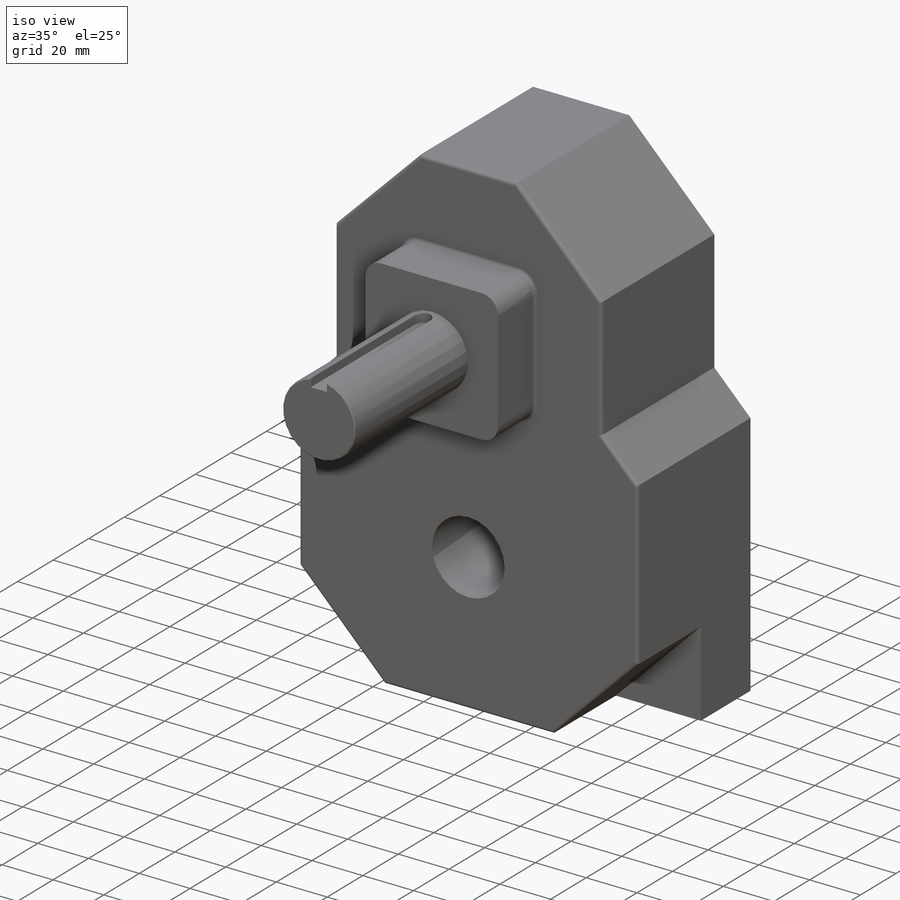
[diagram: iso view]
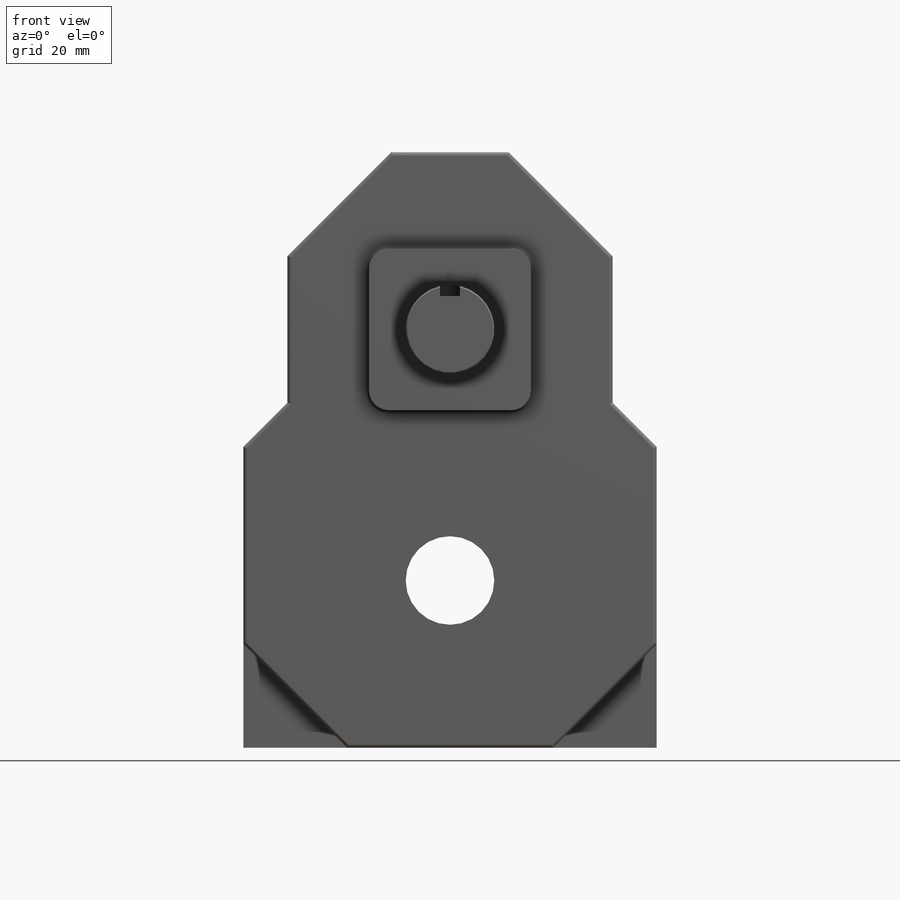
[diagram: front view]
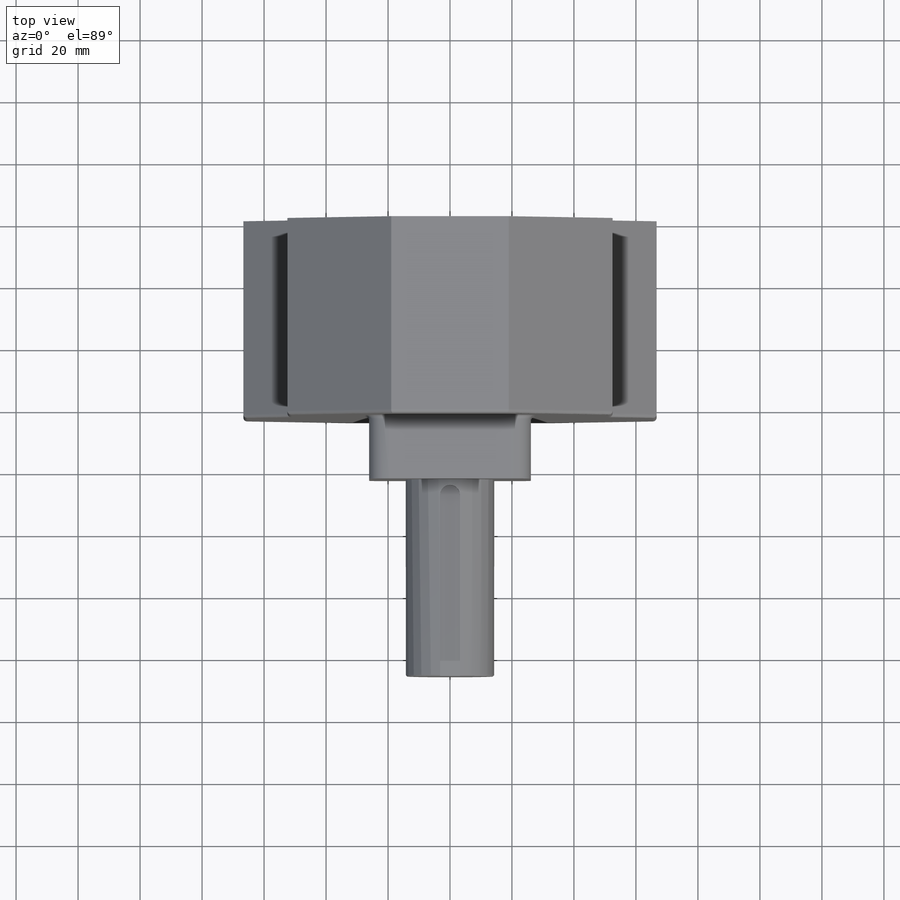
[diagram: top view]
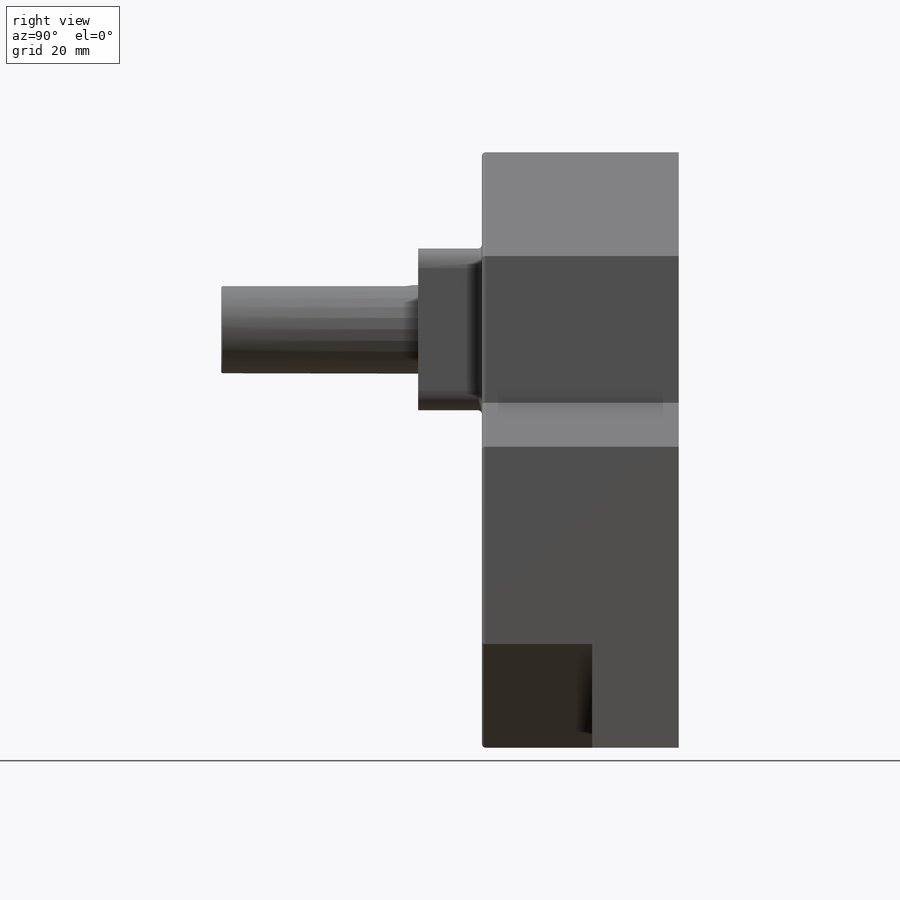
[diagram: right view]
SOLIDWORKS PART (.sldprt)
format: sldprt  version: not decoded by parser v0  size: 327,680 bytes
history: native  units: mm
features: plane x6, sketch x6, extrude x3, cut_extrude x3, fillet x2, material x1, chamfer x1 (+16 scaffold rows collapsed)
feature tree (38):
  scaffold x16  (default folders/planes/origin — collapsed)
  material  "Material <not specified>"
  plane  "G"  Offset=107.95mm
  plane  "E"  Offset=81.026mm
  plane  "J"  Offset=138.176mm
  plane  "B"  Offset=63.5mm
  plane  "C"  Offset=147.574mm
  plane  "A"  Offset=63.5mm
  sketch  "L,M"  dims[c1.D4=12.7mm c1.D1=104.902mm c1.D2=133.35mm c1.D3=16.8726mm c2.D3=45.0deg c2.D4=7.874mm c3.D4=~164.275401deg c3.D3=~16.02671mm c4.D3=45.0deg]
  extrude  "Boss-Extrude1"  [1 undecoded]
  sketch  "Sketch3"  dims[D1=52.197mm]
  extrude  "Boss-Extrude2"  [1 undecoded]
  sketch  "D"  dims[D1=28.575mm]
  extrude  "Boss-Extrude3"  [1 undecoded]
  sketch  "Sketch5"
  cut_extrude  "Cut-Extrude1"  Depth=35.56mm
  fillet  "Fillet1"  Radius=6.35mm
  fillet  "Fillet2"  Radius=1.27mm
  sketch  "Sketch6"  dims[c1.D2=1.5875mm c1.D1=6.35mm c2.D2=5.08mm]
  cut_extrude  "Keyway"  Depth=10.7569mm
  chamfer  "Chamfer1"  Distance=0.381mm Angle=45deg
  sketch  "Sketch7"
  cut_extrude  "Cut-Extrude3"  [1 undecoded]
decode coverage: 9 of 15 modeling features carry decoded parameters
note: ~ marks probable driven/reference dimensions
note: 4 parameter values undecoded
summary: no parameter record found for 4 features
note: suppression state not decoded; provenance and decode notes live in map.json
